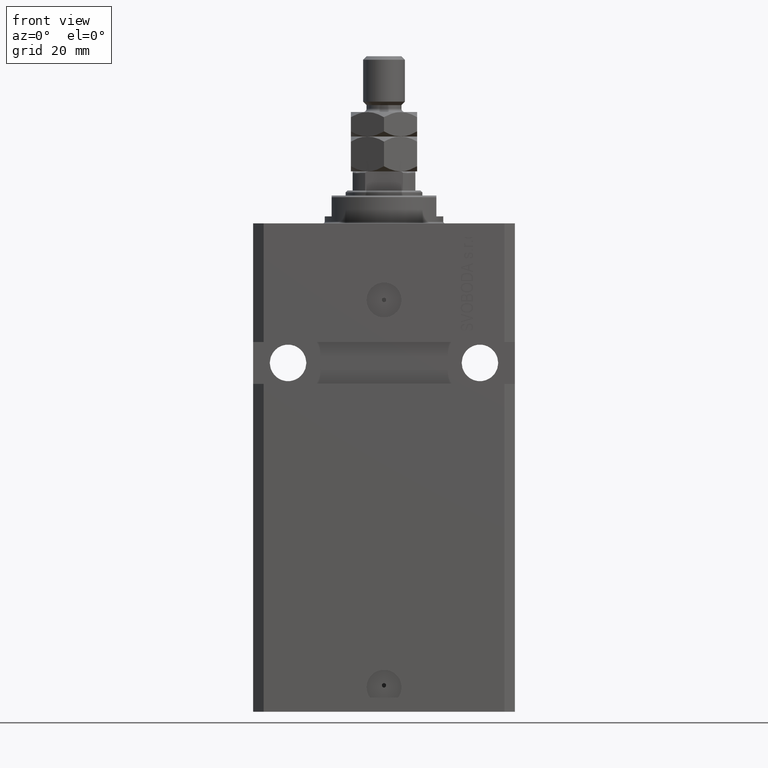
[diagram: clean part render]
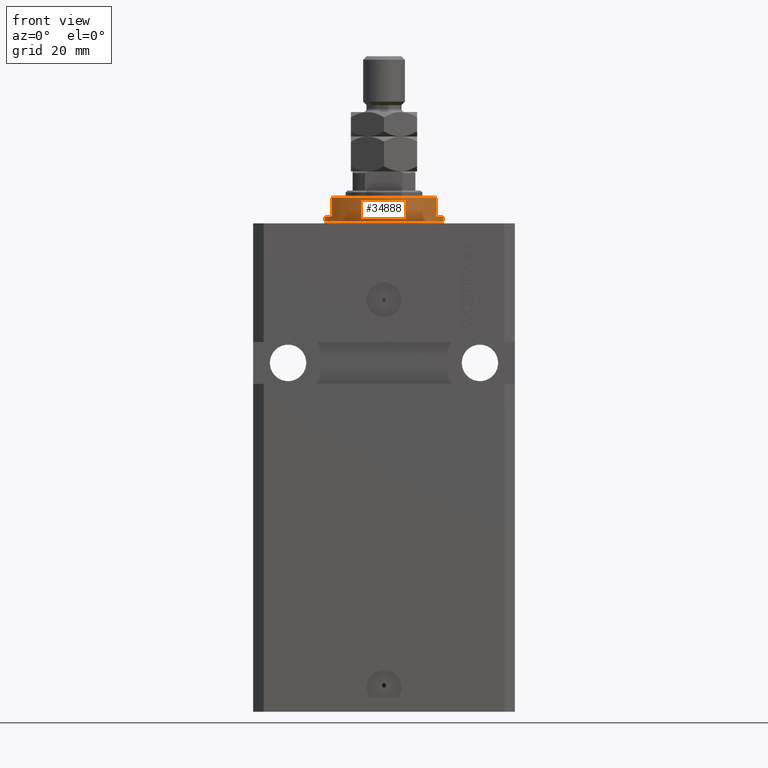
[diagram: same view with one face highlighted and labeled with its STEP entity id]
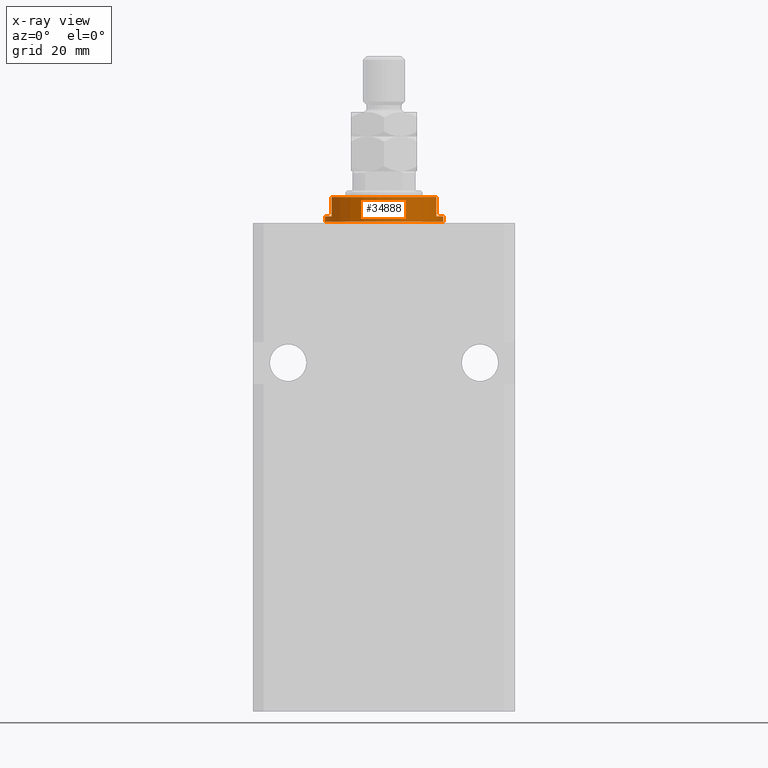
[diagram: x-ray of the same camera — body ghosted, the highlighted face saturated]
A machine part, front view. The second image highlights one B-rep face of the part: STEP entity #34888.
The next image is the same camera in x-ray: the body ghosted, the highlighted face saturated — about 0% of this face is hidden behind the body in this view.
In plain terms, the highlighted cylindrical surface (partial cylindrical patch) has radius 17 mm, axis along (0, 0, -1).
Its self-contained STEP definition (entity closure, byte-faithful):
#622 = DIRECTION ( 'NONE',  ( 1.000000000000000000, 0.000000000000000000, 0.000000000000000000 ) ) ;
#1579 = AXIS2_PLACEMENT_3D ( 'NONE', #7796, #42396, #622 ) ;
#2810 = CIRCLE ( 'NONE', #11706, 17.00000000000000000 ) ;
#3049 = CARTESIAN_POINT ( 'NONE',  ( -17.00000000000000000, 2.081899558550500280E-15, -8.000000000000000000 ) ) ;
#3105 = EDGE_CURVE ( 'NONE', #7528, #28575, #40193, .T. ) ;
#3274 = CIRCLE ( 'NONE', #26866, 17.00000000000000000 ) ;
#4971 = VECTOR ( 'NONE', #36442, 1000.000000000000000 ) ;
#5554 = CARTESIAN_POINT ( 'NONE',  ( 15.00000000000000000, -8.000000000000001776, -7.500000000000013323 ) ) ;
#6311 = DIRECTION ( 'NONE',  ( 0.000000000000000000, 0.000000000000000000, -1.000000000000000000 ) ) ;
#6519 = LINE ( 'NONE', #3049, #32748 ) ;
#6551 = VERTEX_POINT ( 'NONE', #23611 ) ;
#7528 = VERTEX_POINT ( 'NONE', #17403 ) ;
#7796 = CARTESIAN_POINT ( 'NONE',  ( 0.000000000000000000, 0.000000000000000000, -8.000000000000000000 ) ) ;
#8055 = EDGE_CURVE ( 'NONE', #30547, #28575, #6519, .T. ) ;
#8405 = EDGE_CURVE ( 'NONE', #6551, #7528, #30244, .T. ) ;
#8486 = DIRECTION ( 'NONE',  ( 0.000000000000000000, 0.000000000000000000, -1.000000000000000000 ) ) ;
#9650 = ORIENTED_EDGE ( 'NONE', *, *, #8405, .T. ) ;
#9773 = CARTESIAN_POINT ( 'NONE',  ( -15.00000000000000000, -8.000000000000001776, -8.000000000000000000 ) ) ;
#10349 = ORIENTED_EDGE ( 'NONE', *, *, #3105, .T. ) ;
#11098 = CARTESIAN_POINT ( 'NONE',  ( 15.00000000000000000, -8.000000000000001776, -8.000000000000000000 ) ) ;
#11492 = CARTESIAN_POINT ( 'NONE',  ( -17.00000000000000000, 2.081899558550500280E-15, -2.000000000000000000 ) ) ;
#11532 = EDGE_CURVE ( 'NONE', #18693, #30547, #12852, .T. ) ;
#11706 = AXIS2_PLACEMENT_3D ( 'NONE', #26366, #40438, #33069 ) ;
#12287 = CARTESIAN_POINT ( 'NONE',  ( -17.00000000000000000, 2.081899558550500280E-15, -0.5000000000000004441 ) ) ;
#12786 = EDGE_LOOP ( 'NONE', ( #41859, #41516, #21584, #38859, #14442, #42925, #9650, #10349 ) ) ;
#12852 = CIRCLE ( 'NONE', #27559, 17.00000000000000000 ) ;
#14442 = ORIENTED_EDGE ( 'NONE', *, *, #19539, .F. ) ;
#14770 = DIRECTION ( 'NONE',  ( 1.000000000000000000, 0.000000000000000000, 0.000000000000000000 ) ) ;
#14789 = LINE ( 'NONE', #11098, #4971 ) ;
#15873 = DIRECTION ( 'NONE',  ( -1.000000000000000000, 0.000000000000000000, 0.000000000000000000 ) ) ;
#16322 = CARTESIAN_POINT ( 'NONE',  ( 0.000000000000000000, 0.000000000000000000, -7.500000000000013323 ) ) ;
#16431 = CARTESIAN_POINT ( 'NONE',  ( -14.99999999999999645, -8.000000000000003553, -2.000000000000000000 ) ) ;
#16544 = DIRECTION ( 'NONE',  ( 0.000000000000000000, 0.000000000000000000, 1.000000000000000000 ) ) ;
#17403 = CARTESIAN_POINT ( 'NONE',  ( 17.00000000000000000, 0.000000000000000000, -0.5000000000000004441 ) ) ;
#18012 = DIRECTION ( 'NONE',  ( -0.000000000000000000, -0.000000000000000000, 1.000000000000000000 ) ) ;
#18379 = CARTESIAN_POINT ( 'NONE',  ( 14.99999999999999645, -8.000000000000003553, -2.000000000000000000 ) ) ;
#18693 = VERTEX_POINT ( 'NONE', #16431 ) ;
#19539 = EDGE_CURVE ( 'NONE', #41250, #35347, #14789, .T. ) ;
#21326 = VECTOR ( 'NONE', #6311, 1000.000000000000000 ) ;
#21584 = ORIENTED_EDGE ( 'NONE', *, *, #28239, .T. ) ;
#21767 = EDGE_CURVE ( 'NONE', #6551, #41250, #2810, .T. ) ;
#23611 = CARTESIAN_POINT ( 'NONE',  ( 17.00000000000000000, 0.000000000000000000, -2.000000000000000000 ) ) ;
#24911 = CARTESIAN_POINT ( 'NONE',  ( 0.000000000000000000, 0.000000000000000000, -0.5000000000000004441 ) ) ;
#25410 = VECTOR ( 'NONE', #18012, 1000.000000000000000 ) ;
#26366 = CARTESIAN_POINT ( 'NONE',  ( 0.000000000000000000, 0.000000000000000000, -2.000000000000000000 ) ) ;
#26463 = DIRECTION ( 'NONE',  ( -1.000000000000000000, 0.000000000000000000, 0.000000000000000000 ) ) ;
#26811 = AXIS2_PLACEMENT_3D ( 'NONE', #24911, #32063, #14770 ) ;
#26866 = AXIS2_PLACEMENT_3D ( 'NONE', #16322, #16544, #15873 ) ;
#26977 = VERTEX_POINT ( 'NONE', #44465 ) ;
#27559 = AXIS2_PLACEMENT_3D ( 'NONE', #40078, #8486, #26463 ) ;
#28239 = EDGE_CURVE ( 'NONE', #18693, #26977, #35144, .T. ) ;
#28321 = CYLINDRICAL_SURFACE ( 'NONE', #1579, 17.00000000000000000 ) ;
#28575 = VERTEX_POINT ( 'NONE', #12287 ) ;
#30244 = LINE ( 'NONE', #44298, #25410 ) ;
#30547 = VERTEX_POINT ( 'NONE', #11492 ) ;
#32063 = DIRECTION ( 'NONE',  ( -0.000000000000000000, -0.000000000000000000, -1.000000000000000000 ) ) ;
#32748 = VECTOR ( 'NONE', #41817, 1000.000000000000000 ) ;
#33069 = DIRECTION ( 'NONE',  ( -1.000000000000000000, 0.000000000000000000, 0.000000000000000000 ) ) ;
#34888 = ADVANCED_FACE ( 'NONE', ( #39158 ), #28321, .T. ) ;
#35144 = LINE ( 'NONE', #9773, #21326 ) ;
#35347 = VERTEX_POINT ( 'NONE', #5554 ) ;
#36442 = DIRECTION ( 'NONE',  ( 0.000000000000000000, 0.000000000000000000, -1.000000000000000000 ) ) ;
#38859 = ORIENTED_EDGE ( 'NONE', *, *, #45374, .T. ) ;
#39158 = FACE_OUTER_BOUND ( 'NONE', #12786, .T. ) ;
#40078 = CARTESIAN_POINT ( 'NONE',  ( 0.000000000000000000, 0.000000000000000000, -2.000000000000000000 ) ) ;
#40193 = CIRCLE ( 'NONE', #26811, 17.00000000000000000 ) ;
#40438 = DIRECTION ( 'NONE',  ( 0.000000000000000000, 0.000000000000000000, -1.000000000000000000 ) ) ;
#41250 = VERTEX_POINT ( 'NONE', #18379 ) ;
#41516 = ORIENTED_EDGE ( 'NONE', *, *, #11532, .F. ) ;
#41817 = DIRECTION ( 'NONE',  ( -0.000000000000000000, -0.000000000000000000, 1.000000000000000000 ) ) ;
#41859 = ORIENTED_EDGE ( 'NONE', *, *, #8055, .F. ) ;
#42396 = DIRECTION ( 'NONE',  ( -0.000000000000000000, -0.000000000000000000, 1.000000000000000000 ) ) ;
#42925 = ORIENTED_EDGE ( 'NONE', *, *, #21767, .F. ) ;
#44298 = CARTESIAN_POINT ( 'NONE',  ( 17.00000000000000000, 0.000000000000000000, -8.000000000000000000 ) ) ;
#44465 = CARTESIAN_POINT ( 'NONE',  ( -15.00000000000000000, -8.000000000000001776, -7.500000000000014211 ) ) ;
#45374 = EDGE_CURVE ( 'NONE', #26977, #35347, #3274, .T. ) ;